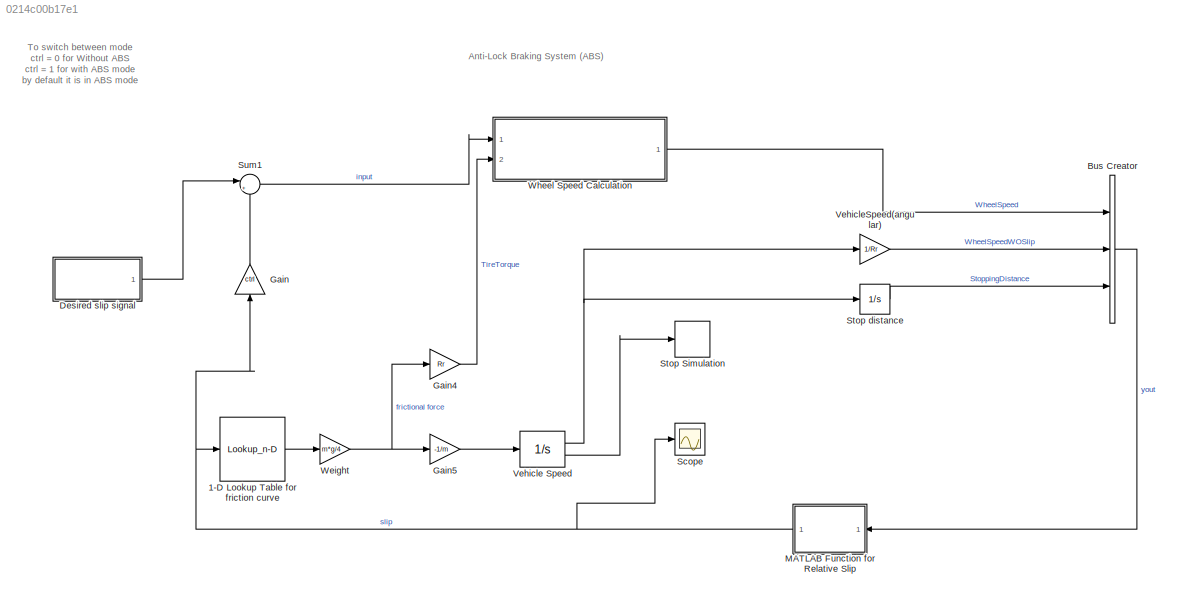
MODEL slx_0214c00b17e1
KIND model
CONFIG AbsTol = auto
CONFIG EnableMultiTasking = off
CONFIG FixedStep = auto
CONFIG MaxStep = auto
CONFIG MinStep = auto
CONFIG RelTol = 1e-3
CONFIG SampleTimeConstraint = Unconstrained
CONFIG SolverName = VariableStepAuto
CONFIG StartTime = 0.0
CONFIG StopTime = 10.0
BLOCK [Lookup_n-D] 1-D Lookup Table for friction curve
  BreakpointsForDimension1 = slip
  InputPortMap = u0
  InternalRulePriority = Speed
  NumberOfTableDimensions = 1
  Ports = [1, 1]
  RndMeth = Simplest
  Table = mu
BLOCK [BusCreator] Bus Creator
  DisplayOption = bar
  InheritFromInputs = on
  Inputs = 3
  Ports = [3, 1]
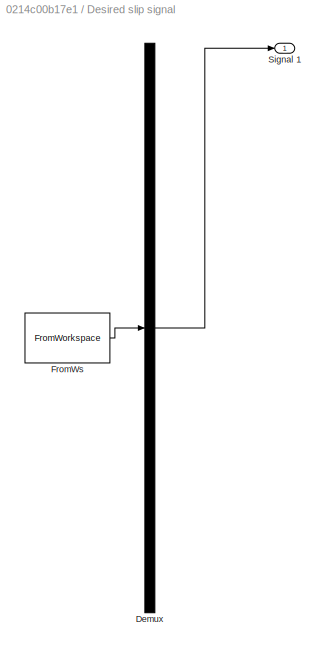
BLOCK [SubSystem] Desired slip signal
  ClipboardFcn = sigbuilder_block('clipboard');
  CloseFcn = sigbuilder_block('close');
  ContinueFcn = sigbuilder_block('continue');
  CopyFcn = sigbuilder_block('copy');
  DeleteFcn = sigbuilder_block('delete');
  LoadFcn = sigbuilder_block('load');
  MaskHideContents = on
  ModelCloseFcn = sigbuilder_block('modelClose');
  NameChangeFcn = sigbuilder_block('namechange');
  OpenFcn = sigbuilder_block('open',[431.4 123 550.8 400.2 ]);
  PauseFcn = sigbuilder_block('pause');
  Ports = [0, 1]
  PreSaveFcn = sigbuilder_block('preSave');
  RequestExecContextInheritance = off
  StartFcn = sigbuilder_block('start');
  StopFcn = sigbuilder_block('stop');
  Tag = STV Subsys
BLOCK [Demux] Desired slip signal/Demux
  DisplayOption = none
  Outputs = 1
  Ports = [1, 1]
  Tag = STV Demux
BLOCK [FromWorkspace] Desired slip signal/FromWs
  Tag = STV FromWs
  VariableName = tuvar
BLOCK [Outport] Desired slip signal/Signal 1
  Tag = STV Outport
BLOCK [Gain] Gain
  Gain = ctrl
  NameLocation = right
BLOCK [Gain] Gain4
  Gain = Rr
BLOCK [Gain] Gain5
  Gain = -1/m
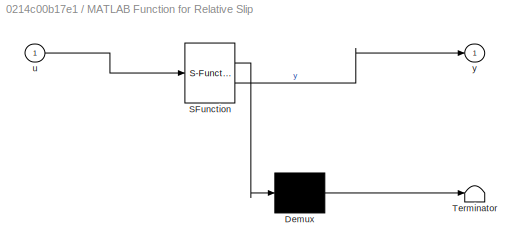
BLOCK [SubSystem] MATLAB Function for Relative Slip
  ErrorFcn = Stateflow.Translate.translate
  NameLocation = top
  PermitHierarchicalResolution = ExplicitOnly
  Ports = [1, 1]
  RequestExecContextInheritance = off
  SFBlockType = MATLAB Function
  TreatAsAtomicUnit = on
BLOCK [Demux] MATLAB Function for Relative Slip/ Demux 
  Outputs = 1
  Ports = [1, 1]
BLOCK [S-Function] MATLAB Function for Relative Slip/ SFunction 
  EnableBusSupport = on
  FunctionName = sf_sfun
  PortCounts = [1 2]
  Ports = [1, 2]
  SFcnIsStateOwnerBlock = off
  SFunctionDeploymentMode = off
  Tag = Stateflow S-Function 2
BLOCK [Terminator] MATLAB Function for Relative Slip/ Terminator 
BLOCK [Inport] MATLAB Function for Relative Slip/u
BLOCK [Outport] MATLAB Function for Relative Slip/y
BLOCK [Scope] Scope
  Floating = off
  NumInputPorts = 1
  Ports = [1]
  ScopeSpecificationString = Simulink.scopes.TimeScopeBlockCfg('CurrentConfiguration', extmgr.ConfigurationSet(extmgr.Configuration('Core','General UI',true),extmgr.Configuration('Core','Source UI',true),extmgr.Configuration('Sources','WiredSimulink',true),extmgr.Configuration('Visuals','Time Domain',true,'SerializedDisplays',{struct('MinYLimReal','-0.125','MaxYLimReal','1.125','YLabelReal','','MinYLimMag','0.00000','MaxYLimM...<+1312ch>
BLOCK [Stop] Stop Simulation
BLOCK [Integrator] Stop distance
  Ports = [1, 1]
BLOCK [Sum] Sum1
  Inputs = |+-
  Ports = [2, 1]
BLOCK [Integrator] Vehicle Speed
  InitialCondition = v0
  LimitOutput = on
  LowerSaturationLimit = 0
  Ports = [1, 2]
  ShowSaturationPort = on
  UpperSaturationLimit = 1000
BLOCK [Gain] VehicleSpeed(angular)
  Gain = 1/Rr
BLOCK [Gain] Weight
  Gain = m*g/4
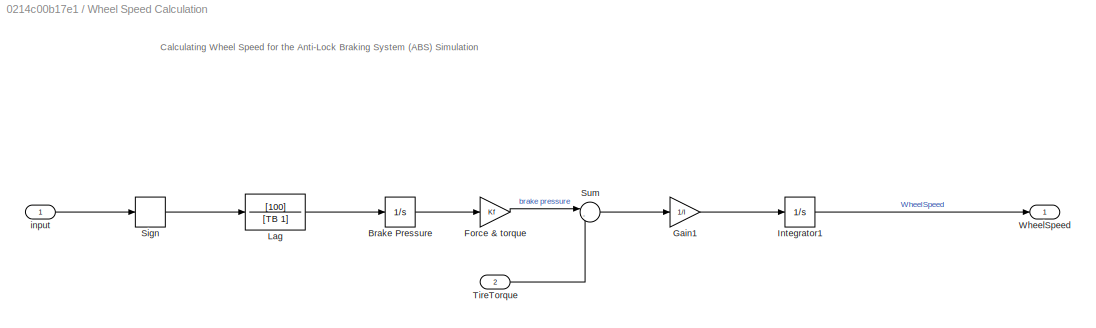
BLOCK [SubSystem] Wheel Speed Calculation
  NameLocation = top
  Ports = [2, 1]
  RequestExecContextInheritance = off
BLOCK [Integrator] Wheel Speed Calculation/Brake Pressure
  LimitOutput = on
  LowerSaturationLimit = 0
  Ports = [1, 1]
  UpperSaturationLimit = PressureBrakemax
BLOCK [Gain] Wheel Speed Calculation/Force & torque
  Gain = Kf
BLOCK [Gain] Wheel Speed Calculation/Gain1
  Gain = 1/I
BLOCK [Integrator] Wheel Speed Calculation/Integrator1
  InitialCondition = v0/Rr
  LimitOutput = on
  LowerSaturationLimit = 0
  Ports = [1, 1]
  UpperSaturationLimit = 1000
BLOCK [TransferFcn] Wheel Speed Calculation/Lag
  Denominator = [TB 1]
  Numerator = [100]
BLOCK [Signum] Wheel Speed Calculation/Sign
BLOCK [Sum] Wheel Speed Calculation/Sum
  Inputs = |-+
  Ports = [2, 1]
BLOCK [Inport] Wheel Speed Calculation/TireTorque
  Port = 2
BLOCK [Outport] Wheel Speed Calculation/WheelSpeed
BLOCK [Inport] Wheel Speed Calculation/input
ANNOTATION (root): To switch between mode ctrl = 0 for Without ABS ctrl = 1 for with ABS mode by default it is in ABS mode
ANNOTATION (root): Anti-Lock Braking System (ABS)
ANNOTATION Wheel Speed Calculation: Calculating Wheel Speed for the Anti-Lock Braking System (ABS) Simulation
LINE 1-D Lookup Table for friction curve:1 -> Weight:1
LINE Bus Creator:1 -> MATLAB Function for Relative Slip:1
LINE Desired slip signal:1 -> Sum1:1
LINE Gain4:1 -> Wheel Speed Calculation:2
LINE Gain5:1 -> Vehicle Speed:1
LINE Gain:1 -> Sum1:2
NET MATLAB Function for Relative Slip:1 -> 1-D Lookup Table for friction curve:1, Gain:1, Scope:1
LINE Stop distance:1 -> Bus Creator:3
LINE Sum1:1 -> Wheel Speed Calculation:1
NET Vehicle Speed:1 -> Stop distance:1, VehicleSpeed(angular):1
LINE Vehicle Speed:2 -> Stop Simulation:1
LINE VehicleSpeed(angular):1 -> Bus Creator:2
NET Weight:1 -> Gain4:1, Gain5:1
LINE Wheel Speed Calculation/Brake Pressure:1 -> Wheel Speed Calculation/Force & torque:1
LINE Wheel Speed Calculation/Force & torque:1 -> Wheel Speed Calculation/Sum:1
LINE Wheel Speed Calculation/Gain1:1 -> Wheel Speed Calculation/Integrator1:1
LINE Wheel Speed Calculation/Integrator1:1 -> Wheel Speed Calculation/WheelSpeed:1
LINE Wheel Speed Calculation/Lag:1 -> Wheel Speed Calculation/Brake Pressure:1
LINE Wheel Speed Calculation/Sign:1 -> Wheel Speed Calculation/Lag:1
LINE Wheel Speed Calculation/Sum:1 -> Wheel Speed Calculation/Gain1:1
LINE Wheel Speed Calculation/TireTorque:1 -> Wheel Speed Calculation/Sum:2
LINE Wheel Speed Calculation/input:1 -> Wheel Speed Calculation/Sign:1
LINE Wheel Speed Calculation:1 -> Bus Creator:1
note: NET lines group one-source signal fan-out (src -> all destinations, sorted); 1:1 wires keep LINE
CHART MATLAB Function for Relative Slip states=1 transitions=1
  STATE_LABEL 'eML_blk_kernel()'
  STATE_LABEL 'SCRIPT:\nfunction y = fcn(u)\n\ny = 1.0-u(1)/(u(2) + (u(2)==0)*eps);\n'
CHART  states=0 transitions=0
